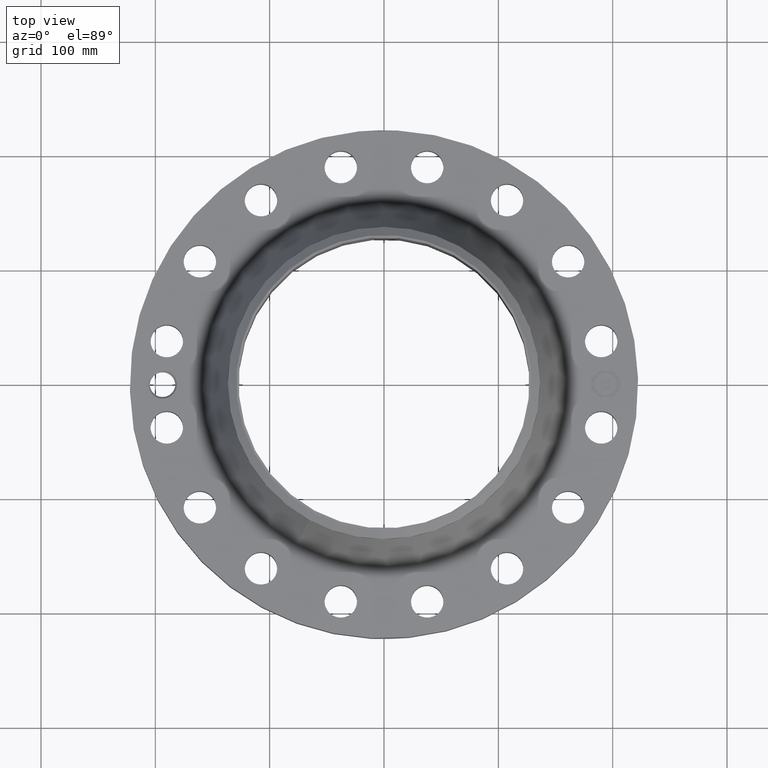
[diagram: clean part render]
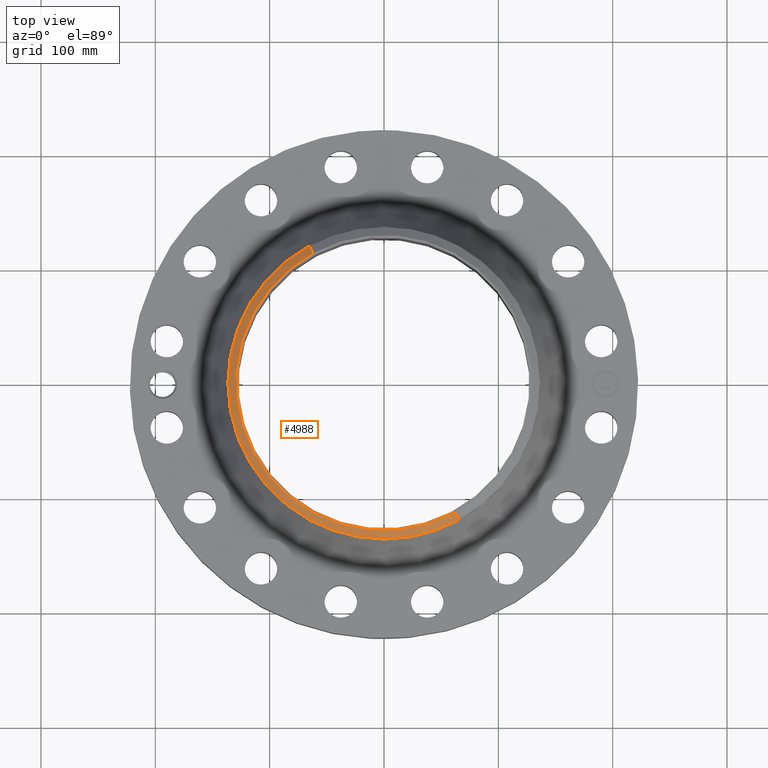
[diagram: same view with one face highlighted and labeled with its STEP entity id]
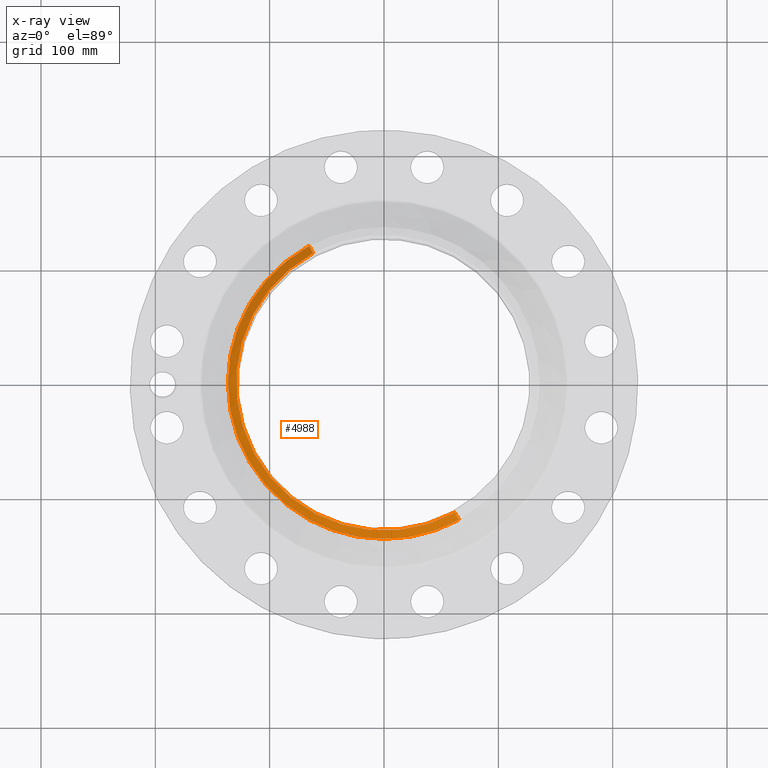
[diagram: x-ray of the same camera — body ghosted, the highlighted face saturated]
A machine part, top view. The second image highlights one B-rep face of the part: STEP entity #4988.
The next image is the same camera in x-ray: the body ghosted, the highlighted face saturated — about 0% of this face is hidden behind the body in this view.
In plain terms, the highlighted conical surface has half-angle 52.5 deg.
Its self-contained STEP definition (entity closure, byte-faithful):
#3814=AXIS2_PLACEMENT_3D('Circle Axis2P3D',#3812,#3813,$) ;
#3827=AXIS2_PLACEMENT_3D('Circle Axis2P3D',#3825,#3826,$) ;
#4617=AXIS2_PLACEMENT_3D('Circle Axis2P3D',#4615,#4616,$) ;
#4961=AXIS2_PLACEMENT_3D('Cone Axis2P3D',#4958,#4959,#4960) ;
#3795=CARTESIAN_POINT('Vertex',(-2.57691227001,-4.71700627018,4.46034509728)) ;
#3809=CARTESIAN_POINT('Vertex',(2.57691227001,-4.71700627018,4.46034509728)) ;
#3812=CARTESIAN_POINT('Axis2P3D Location',(0.,0.,4.46034509728)) ;
#3825=CARTESIAN_POINT('Axis2P3D Location',(0.,0.,4.46034509728)) ;
#3829=CARTESIAN_POINT('Vertex',(-2.57691227001,4.71700627018,4.46034509728)) ;
#4610=CARTESIAN_POINT('Vertex',(2.43967199083,-4.46578962421,4.68000000002)) ;
#4612=CARTESIAN_POINT('Vertex',(-2.43967199083,4.46578962421,4.68000000002)) ;
#4615=CARTESIAN_POINT('Axis2P3D Location',(0.,0.,4.68000000002)) ;
#4958=CARTESIAN_POINT('Axis2P3D Location',(0.,0.,4.68000000002)) ;
#4963=CARTESIAN_POINT('Line Origine',(-2.50829213042,4.5913979472,4.57017254865)) ;
#4968=CARTESIAN_POINT('Line Origine',(2.50829213042,-4.5913979472,4.57017254865)) ;
#3813=DIRECTION('Axis2P3D Direction',(0.,0.,-0.0393700787402)) ;
#3826=DIRECTION('Axis2P3D Direction',(0.,0.,-0.0393700787402)) ;
#4616=DIRECTION('Axis2P3D Direction',(0.,0.,-0.0393700787402)) ;
#4959=DIRECTION('Axis2P3D Direction',(-0.,-0.,-0.0393700787402)) ;
#4960=DIRECTION('Axis2P3D XDirection',(0.0188750212049,-0.0345504945626,0.)) ;
#4964=DIRECTION('Vector Direction',(-0.014974561121,0.02741075027,-0.023966985394)) ;
#4969=DIRECTION('Vector Direction',(0.014974561121,-0.02741075027,-0.023966985394)) ;
#4965=VECTOR('Line Direction',#4964,0.0393700787402) ;
#4970=VECTOR('Line Direction',#4969,0.0393700787402) ;
#4982=ORIENTED_EDGE('',*,*,#4972,.F.) ;
#4983=ORIENTED_EDGE('',*,*,#4619,.F.) ;
#4984=ORIENTED_EDGE('',*,*,#4967,.T.) ;
#4985=ORIENTED_EDGE('',*,*,#3831,.T.) ;
#4986=ORIENTED_EDGE('',*,*,#3816,.F.) ;
#4988=ADVANCED_FACE('PartBody',(#4987),#4962,.T.) ;
#3815=CIRCLE('generated circle',#3814,5.37500000002) ;
#3828=CIRCLE('generated circle',#3827,5.37500000002) ;
#4618=CIRCLE('generated circle',#4617,5.0887401575) ;
#4962=CONICAL_SURFACE('Cone',#4961,5.0887401575,0.916297857297) ;
#3816=EDGE_CURVE('',#3810,#3796,#3815,.T.) ;
#3831=EDGE_CURVE('',#3830,#3796,#3828,.F.) ;
#4619=EDGE_CURVE('',#4613,#4611,#4618,.F.) ;
#4967=EDGE_CURVE('',#4613,#3830,#4966,.T.) ;
#4972=EDGE_CURVE('',#4611,#3810,#4971,.T.) ;
#4981=EDGE_LOOP('',(#4982,#4983,#4984,#4985,#4986)) ;
#4987=FACE_OUTER_BOUND('',#4981,.T.) ;
#4966=LINE('Line',#4963,#4965) ;
#4971=LINE('Line',#4968,#4970) ;
#3796=VERTEX_POINT('',#3795) ;
#3810=VERTEX_POINT('',#3809) ;
#3830=VERTEX_POINT('',#3829) ;
#4611=VERTEX_POINT('',#4610) ;
#4613=VERTEX_POINT('',#4612) ;